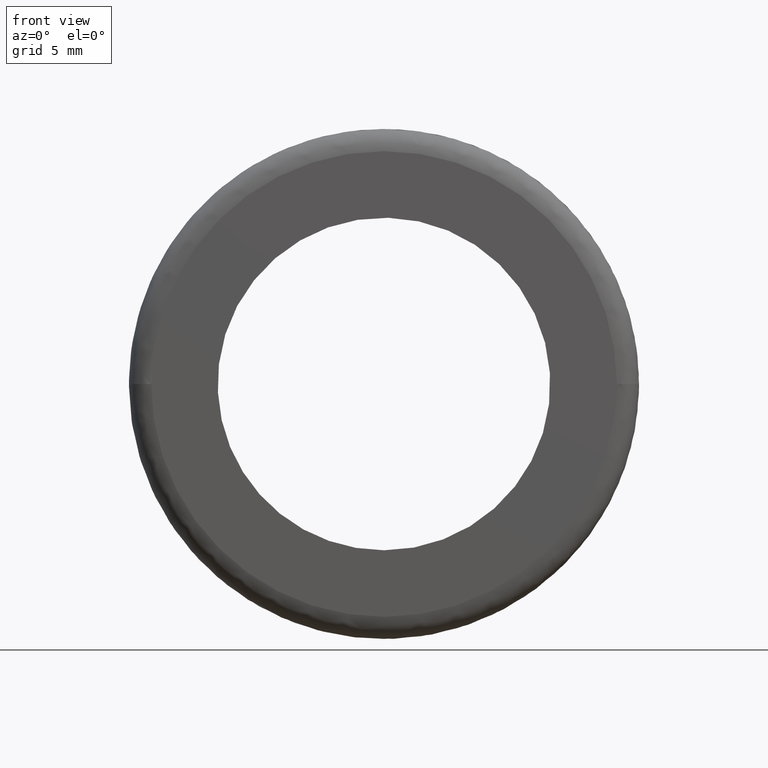
[diagram: clean part render]
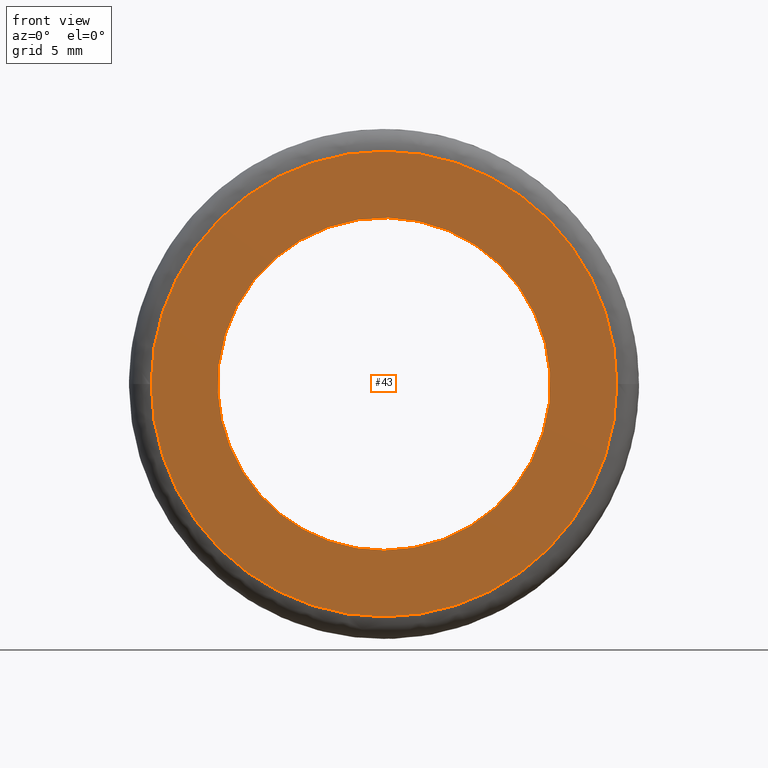
[diagram: same view with one face highlighted and labeled with its STEP entity id]
A machine part, front view. The second image highlights one B-rep face of the part: STEP entity #43.
In plain terms, the highlighted planar face has unit normal (0, 1, 0).
Its self-contained STEP definition (entity closure, byte-faithful):
#43=ADVANCED_FACE('',(#90,#91),#89,.F.);
#89=PLANE('',#241);
#90=FACE_OUTER_BOUND('',#242,.T.);
#91=FACE_BOUND('',#243,.T.);
#238=CARTESIAN_POINT('',(-2.18238401765E+001,-1.65321900000E-015,-2.41500000007E+001));
#239=DIRECTION('',(0.00000000000E+000,1.00000000000E+000,0.00000000000E+000));
#240=DIRECTION('',(0.00000000000E+000,0.00000000000E+000,1.00000000000E+000));
#241=AXIS2_PLACEMENT_3D('',#238,#239,#240);
#242=EDGE_LOOP('',(#406,#407,#408));
#243=EDGE_LOOP('',(#409,#410,#411));
#406=ORIENTED_EDGE('',*,*,#504,.T.);
#407=ORIENTED_EDGE('',*,*,#505,.T.);
#408=ORIENTED_EDGE('',*,*,#506,.T.);
#409=ORIENTED_EDGE('',*,*,#507,.F.);
#410=ORIENTED_EDGE('',*,*,#508,.F.);
#411=ORIENTED_EDGE('',*,*,#509,.F.);
#504=EDGE_CURVE('',#661,#662,#663,.T.);
#505=EDGE_CURVE('',#662,#669,#670,.T.);
#506=EDGE_CURVE('',#669,#661,#676,.T.);
#507=EDGE_CURVE('',#682,#683,#684,.T.);
#508=EDGE_CURVE('',#690,#682,#691,.T.);
#509=EDGE_CURVE('',#683,#690,#697,.T.);
#661=VERTEX_POINT('',#956);
#662=VERTEX_POINT('',#957);
#663=CIRCLE('',#961,1.05000000005E+001);
#669=VERTEX_POINT('',#962);
#670=CIRCLE('',#966,1.05000000005E+001);
#676=CIRCLE('',#970,1.05000000005E+001);
#682=VERTEX_POINT('',#971);
#683=VERTEX_POINT('',#972);
#684=CIRCLE('',#976,7.50000000000E+000);
#690=VERTEX_POINT('',#977);
#691=CIRCLE('',#981,7.50000000000E+000);
#697=CIRCLE('',#985,7.50000000000E+000);
#956=CARTESIAN_POINT('',(8.41757125485E-016,4.34242143881E-016,1.05000000010E+001));
#957=CARTESIAN_POINT('',(-1.05000000006E+001,-7.47256428118E-016,0.00000000000E+000));
#958=CARTESIAN_POINT('',(-9.68167768178E-011,-7.47256428059E-016,5.24027932158E-010));
#959=DIRECTION('',(2.00115478432E-032,-1.00000000000E+000,1.12523673513E-016));
#960=DIRECTION('',(9.22060311747E-012,1.12523673513E-016,1.00000000000E+000));
#961=AXIS2_PLACEMENT_3D('',#958,#959,#960);
#962=CARTESIAN_POINT('',(1.04999999439E+001,-7.47379045000E-016,-1.08969852758E-003));
#963=CARTESIAN_POINT('',(-9.68167768178E-011,-7.47256428059E-016,5.24027932158E-010));
#964=DIRECTION('',(2.00115478432E-032,-1.00000000000E+000,1.12523673513E-016));
#965=DIRECTION('',(9.22060311747E-012,1.12523673513E-016,1.00000000000E+000));
#966=AXIS2_PLACEMENT_3D('',#963,#964,#965);
#967=CARTESIAN_POINT('',(-9.68167768178E-011,-7.47256428059E-016,5.24027932158E-010));
#968=DIRECTION('',(2.00115478432E-032,-1.00000000000E+000,1.12523673513E-016));
#969=DIRECTION('',(9.22060311747E-012,1.12523673513E-016,1.00000000000E+000));
#970=AXIS2_PLACEMENT_3D('',#967,#968,#969);
#971=CARTESIAN_POINT('',(-7.44757177146E+000,-2.15780086431E-015,8.85254036392E-001));
#972=CARTESIAN_POINT('',(-3.88578058619E-015,-8.48131372964E-015,-7.50000000000E+000));
#973=CARTESIAN_POINT('',(1.69197988953E-013,-1.96281207418E-015,3.71702668645E-013));
#974=DIRECTION('',(1.29490900743E-016,-1.00000000000E+000,8.69133554061E-016));
#975=DIRECTION('',(-2.27179386414E-014,-8.69133554061E-016,-1.00000000000E+000));
#976=AXIS2_PLACEMENT_3D('',#973,#974,#975);
#977=CARTESIAN_POINT('',(7.44741833179E+000,-1.76896426812E-015,-8.86543959015E-001));
#978=CARTESIAN_POINT('',(1.69197988953E-013,-1.96281207418E-015,3.71702668645E-013));
#979=DIRECTION('',(1.29490900743E-016,-1.00000000000E+000,8.69133554061E-016));
#980=DIRECTION('',(-2.27179386414E-014,-8.69133554061E-016,-1.00000000000E+000));
#981=AXIS2_PLACEMENT_3D('',#978,#979,#980);
#982=CARTESIAN_POINT('',(1.69197988953E-013,-1.96281207418E-015,3.71702668645E-013));
#983=DIRECTION('',(1.29490900743E-016,-1.00000000000E+000,8.69133554061E-016));
#984=DIRECTION('',(-2.27179386414E-014,-8.69133554061E-016,-1.00000000000E+000));
#985=AXIS2_PLACEMENT_3D('',#982,#983,#984);